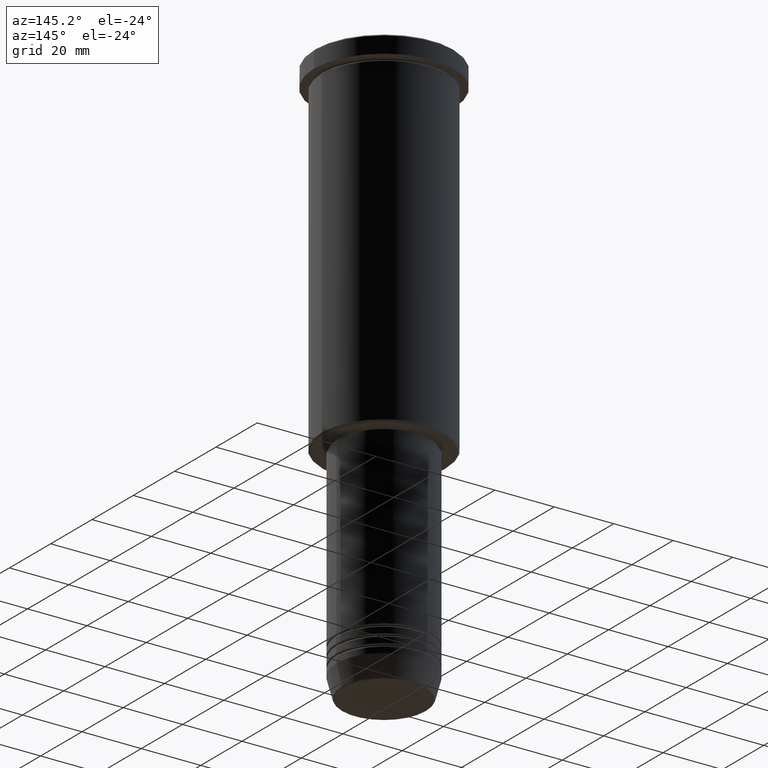
[diagram: clean part render]
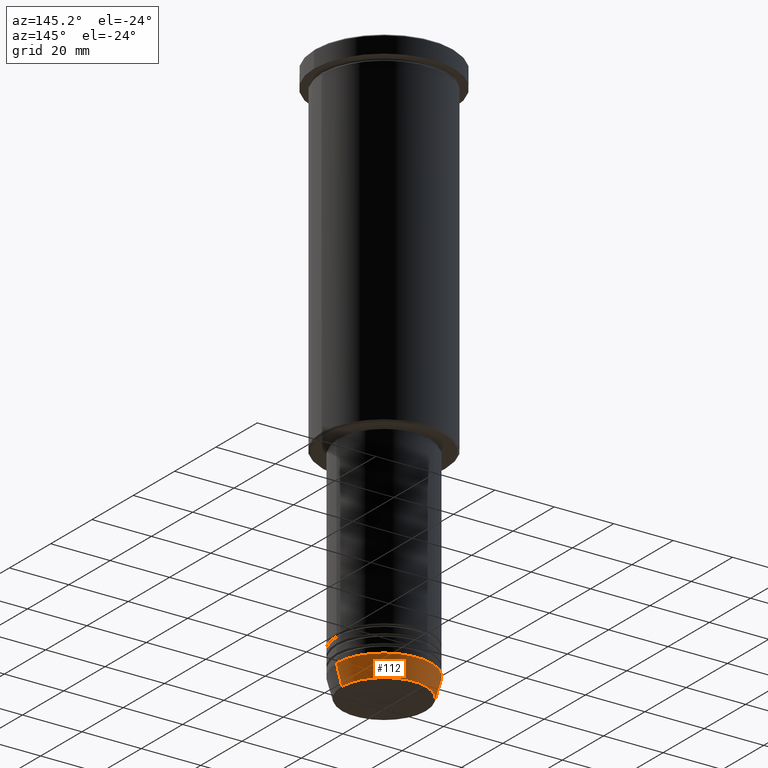
[diagram: same view with one face highlighted and labeled with its STEP entity id]
A machine part, auxiliary view. The second image highlights one B-rep face of the part: STEP entity #112.
In plain terms, the highlighted conical surface has half-angle 15 deg.
Its self-contained STEP definition (entity closure, byte-faithful):
#1 = AXIS2_PLACEMENT_3D ( 'NONE', #625, #995, #908 ) ;
#4 = EDGE_CURVE ( 'NONE', #635, #598, #132, .T. ) ;
#21 = CARTESIAN_POINT ( 'NONE',  ( 14.22365507213719660, 0.000000000000000000, -190.6294095225512706 ) ) ;
#27 = DIRECTION ( 'NONE',  ( -0.000000000000000000, -0.000000000000000000, 1.000000000000000000 ) ) ;
#112 = ADVANCED_FACE ( 'NONE', ( #1062 ), #1054, .T. ) ;
#132 = LINE ( 'NONE', #199, #748 ) ;
#165 = CARTESIAN_POINT ( 'NONE',  ( 0.000000000000000000, 0.000000000000000000, -184.0000000000000284 ) ) ;
#197 = EDGE_CURVE ( 'NONE', #439, #428, #1070, .T. ) ;
#199 = CARTESIAN_POINT ( 'NONE',  ( 16.00000000000000000, 0.000000000000000000, -184.0000000000000284 ) ) ;
#242 = DIRECTION ( 'NONE',  ( 1.000000000000000000, 0.000000000000000000, 0.000000000000000000 ) ) ;
#321 = ORIENTED_EDGE ( 'NONE', *, *, #432, .F. ) ;
#343 = EDGE_CURVE ( 'NONE', #635, #439, #380, .T. ) ;
#380 = CIRCLE ( 'NONE', #1, 14.22365507213719660 ) ;
#394 = CARTESIAN_POINT ( 'NONE',  ( -14.22365507213719660, 1.850665122131324126E-15, -190.6294095225512706 ) ) ;
#428 = VERTEX_POINT ( 'NONE', #638 ) ;
#432 = EDGE_CURVE ( 'NONE', #598, #428, #669, .T. ) ;
#439 = VERTEX_POINT ( 'NONE', #394 ) ;
#552 = CARTESIAN_POINT ( 'NONE',  ( 16.00000000000000000, 0.000000000000000000, -184.0000000000000284 ) ) ;
#598 = VERTEX_POINT ( 'NONE', #552 ) ;
#625 = CARTESIAN_POINT ( 'NONE',  ( 0.000000000000000000, 0.000000000000000000, -190.6294095225512706 ) ) ;
#635 = VERTEX_POINT ( 'NONE', #21 ) ;
#638 = CARTESIAN_POINT ( 'NONE',  ( -16.00000000000000000, 1.959434878635765131E-15, -184.0000000000000284 ) ) ;
#669 = CIRCLE ( 'NONE', #1139, 16.00000000000000000 ) ;
#683 = DIRECTION ( 'NONE',  ( -0.000000000000000000, -0.000000000000000000, 1.000000000000000000 ) ) ;
#689 = DIRECTION ( 'NONE',  ( -0.2588190451025213501, 3.169619151431772337E-17, 0.9659258262890680902 ) ) ;
#748 = VECTOR ( 'NONE', #927, 1000.000000000000000 ) ;
#758 = ORIENTED_EDGE ( 'NONE', *, *, #343, .T. ) ;
#773 = AXIS2_PLACEMENT_3D ( 'NONE', #165, #683, #242 ) ;
#833 = ORIENTED_EDGE ( 'NONE', *, *, #4, .F. ) ;
#864 = VECTOR ( 'NONE', #689, 1000.000000000000000 ) ;
#908 = DIRECTION ( 'NONE',  ( 1.000000000000000000, 0.000000000000000000, 0.000000000000000000 ) ) ;
#917 = DIRECTION ( 'NONE',  ( 1.000000000000000000, 0.000000000000000000, 0.000000000000000000 ) ) ;
#927 = DIRECTION ( 'NONE',  ( 0.2588190451025213501, 0.000000000000000000, 0.9659258262890680902 ) ) ;
#995 = DIRECTION ( 'NONE',  ( -0.000000000000000000, -0.000000000000000000, 1.000000000000000000 ) ) ;
#1022 = CARTESIAN_POINT ( 'NONE',  ( 0.000000000000000000, 0.000000000000000000, -184.0000000000000284 ) ) ;
#1054 = CONICAL_SURFACE ( 'NONE', #773, 16.00000000000000000, 0.2617993877991500740 ) ;
#1062 = FACE_OUTER_BOUND ( 'NONE', #1149, .T. ) ;
#1070 = LINE ( 'NONE', #1150, #864 ) ;
#1095 = ORIENTED_EDGE ( 'NONE', *, *, #197, .T. ) ;
#1139 = AXIS2_PLACEMENT_3D ( 'NONE', #1022, #27, #917 ) ;
#1149 = EDGE_LOOP ( 'NONE', ( #758, #1095, #321, #833 ) ) ;
#1150 = CARTESIAN_POINT ( 'NONE',  ( -16.00000000000000000, 1.959434878635765131E-15, -184.0000000000000284 ) ) ;